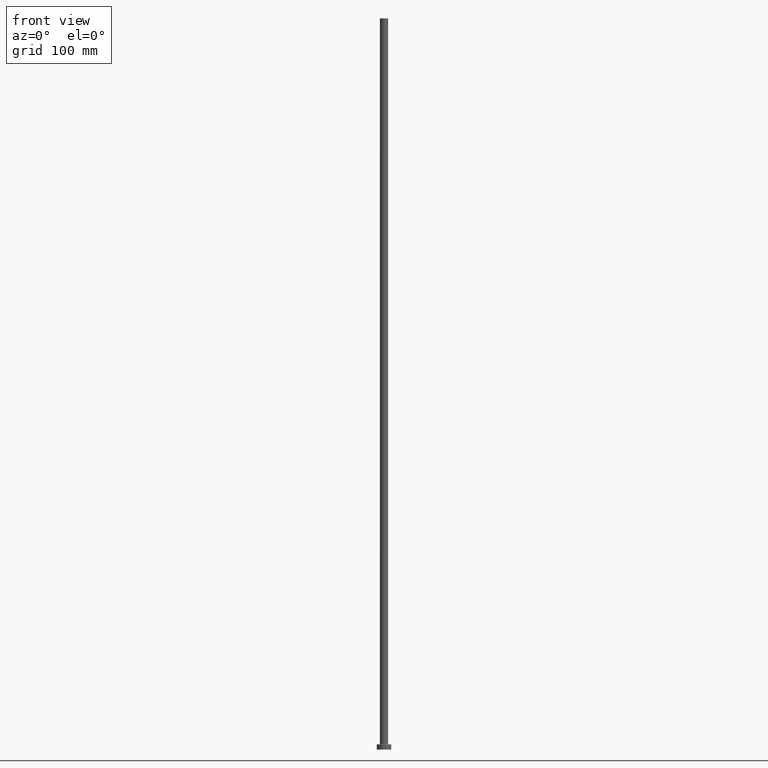
[diagram: clean part render]
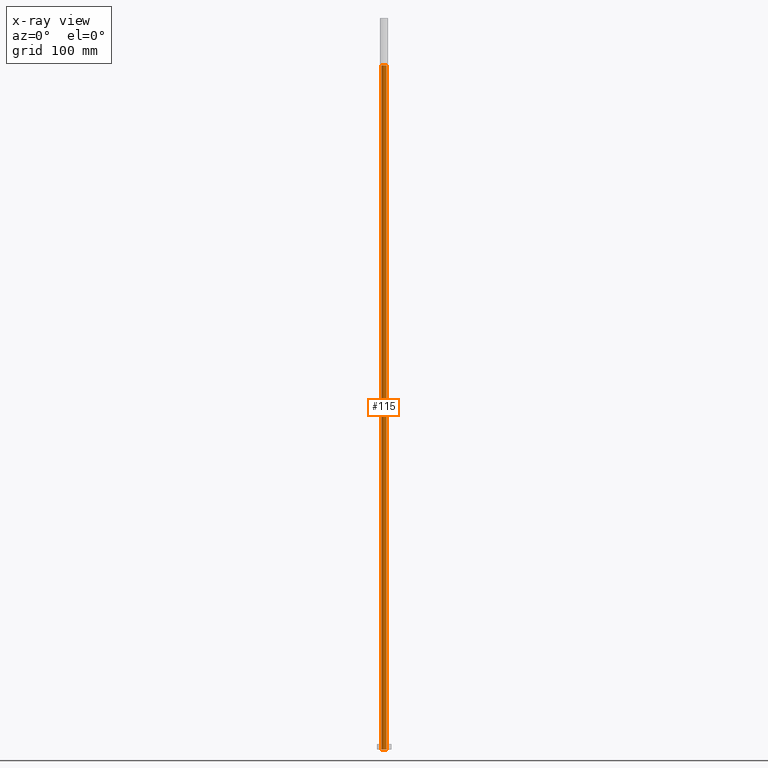
[diagram: x-ray — body ghosted, one internal face saturated and labeled with its STEP entity id]
A machine part, front view, then the same camera in x-ray: the body is ghosted and one INTERNAL B-rep face — a face not visible from any outside direction — is saturated and labeled: STEP entity #115.
In plain terms, the highlighted cylindrical surface (edge-blend (fillet) strip) has radius 2.4 mm, axis along (0, 0, -1).
Its self-contained STEP definition (entity closure, byte-faithful):
#10 = EDGE_CURVE ( 'NONE', #190, #368, #114, .T. ) ;
#13 = DIRECTION ( 'NONE',  ( 0.000000000000000000, 0.000000000000000000, -1.000000000000000000 ) ) ;
#23 = EDGE_CURVE ( 'NONE', #314, #368, #300, .T. ) ;
#75 = CARTESIAN_POINT ( 'NONE',  ( -2.399999999999999911, 0.000000000000000000, 661.7882250993908428 ) ) ;
#110 = VECTOR ( 'NONE', #171, 1000.000000000000000 ) ;
#114 = LINE ( 'NONE', #75, #110 ) ;
#115 = ADVANCED_FACE ( 'NONE', ( #209 ), #244, .F. ) ;
#134 = CIRCLE ( 'NONE', #245, 2.399999999999999911 ) ;
#135 = CARTESIAN_POINT ( 'NONE',  ( 2.399999999999999911, 2.939152317953647106E-16, 654.9999999999998863 ) ) ;
#149 = VECTOR ( 'NONE', #13, 1000.000000000000000 ) ;
#155 = CARTESIAN_POINT ( 'NONE',  ( 0.000000000000000000, 0.000000000000000000, 654.9999999999998863 ) ) ;
#157 = DIRECTION ( 'NONE',  ( 1.000000000000000000, 0.000000000000000000, 0.000000000000000000 ) ) ;
#170 = DIRECTION ( 'NONE',  ( 0.000000000000000000, 0.000000000000000000, -1.000000000000000000 ) ) ;
#171 = DIRECTION ( 'NONE',  ( 0.000000000000000000, 0.000000000000000000, -1.000000000000000000 ) ) ;
#190 = VERTEX_POINT ( 'NONE', #325 ) ;
#193 = EDGE_LOOP ( 'NONE', ( #224, #254, #225, #408 ) ) ;
#198 = AXIS2_PLACEMENT_3D ( 'NONE', #279, #170, #426 ) ;
#209 = FACE_OUTER_BOUND ( 'NONE', #193, .T. ) ;
#217 = EDGE_CURVE ( 'NONE', #263, #314, #221, .T. ) ;
#221 = LINE ( 'NONE', #331, #149 ) ;
#224 = ORIENTED_EDGE ( 'NONE', *, *, #230, .T. ) ;
#225 = ORIENTED_EDGE ( 'NONE', *, *, #23, .T. ) ;
#230 = EDGE_CURVE ( 'NONE', #190, #263, #134, .T. ) ;
#232 = CARTESIAN_POINT ( 'NONE',  ( 2.399999999999999911, 2.939152317953647106E-16, 0.000000000000000000 ) ) ;
#244 = CYLINDRICAL_SURFACE ( 'NONE', #198, 2.399999999999999911 ) ;
#245 = AXIS2_PLACEMENT_3D ( 'NONE', #155, #259, #157 ) ;
#254 = ORIENTED_EDGE ( 'NONE', *, *, #217, .T. ) ;
#259 = DIRECTION ( 'NONE',  ( 0.000000000000000000, 0.000000000000000000, 1.000000000000000000 ) ) ;
#263 = VERTEX_POINT ( 'NONE', #135 ) ;
#279 = CARTESIAN_POINT ( 'NONE',  ( 0.000000000000000000, 0.000000000000000000, 661.7882250993908428 ) ) ;
#282 = DIRECTION ( 'NONE',  ( -0.000000000000000000, -0.000000000000000000, -1.000000000000000000 ) ) ;
#300 = CIRCLE ( 'NONE', #445, 2.399999999999999911 ) ;
#310 = CARTESIAN_POINT ( 'NONE',  ( 0.000000000000000000, 0.000000000000000000, 0.000000000000000000 ) ) ;
#314 = VERTEX_POINT ( 'NONE', #232 ) ;
#325 = CARTESIAN_POINT ( 'NONE',  ( -2.399999999999999911, 0.000000000000000000, 654.9999999999998863 ) ) ;
#331 = CARTESIAN_POINT ( 'NONE',  ( 2.399999999999999911, 2.939152317953647106E-16, 661.7882250993908428 ) ) ;
#368 = VERTEX_POINT ( 'NONE', #450 ) ;
#408 = ORIENTED_EDGE ( 'NONE', *, *, #10, .F. ) ;
#426 = DIRECTION ( 'NONE',  ( -1.000000000000000000, 0.000000000000000000, 0.000000000000000000 ) ) ;
#445 = AXIS2_PLACEMENT_3D ( 'NONE', #310, #282, #454 ) ;
#450 = CARTESIAN_POINT ( 'NONE',  ( -2.399999999999999911, 0.000000000000000000, 0.000000000000000000 ) ) ;
#454 = DIRECTION ( 'NONE',  ( 1.000000000000000000, 0.000000000000000000, 0.000000000000000000 ) ) ;